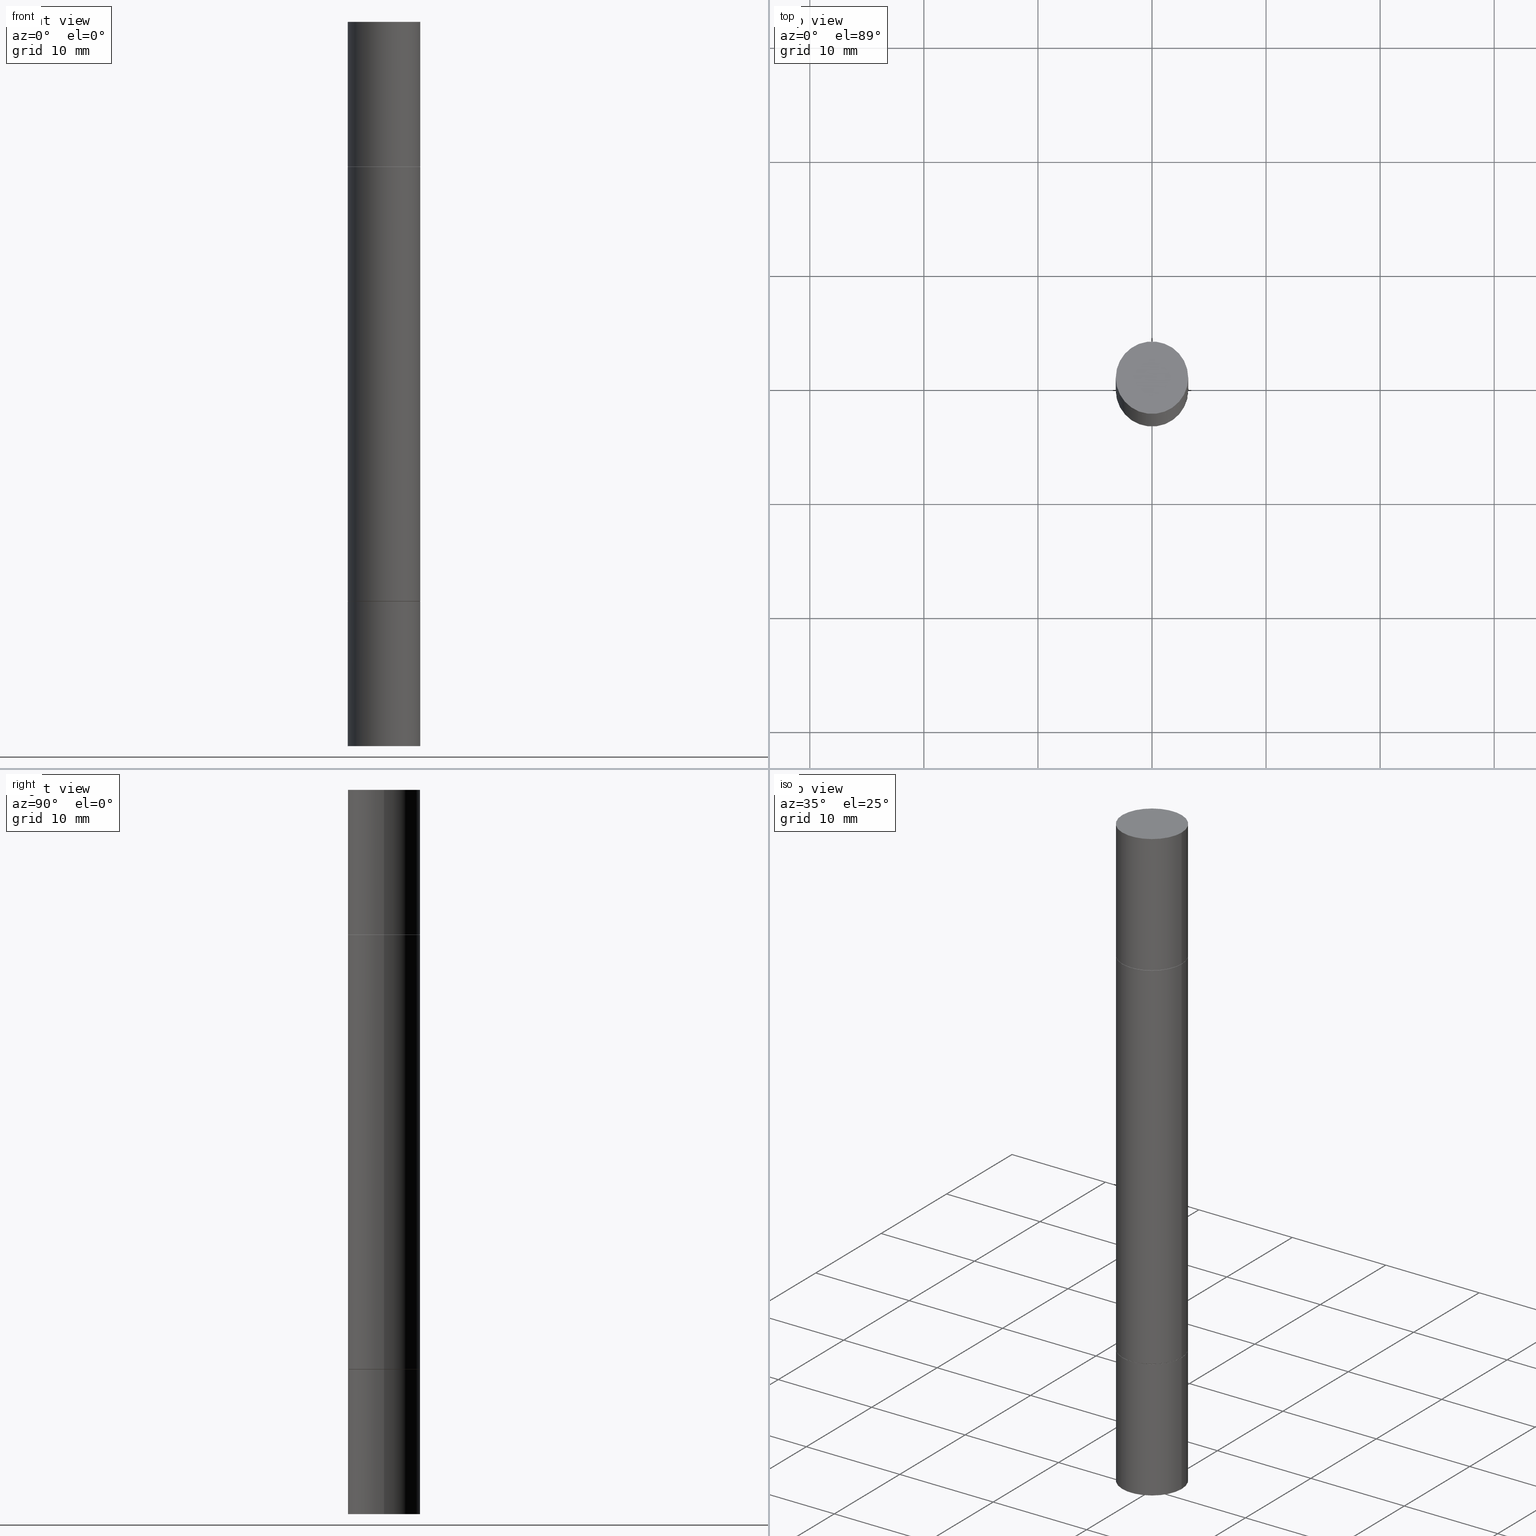
[diagram: canonical four-view strip — front | top / right | iso, engineering-drawing reading convention]
A machine part, canonical four-view strip (front | top / right | iso — engineering-drawing reading convention). The complete STEP part file that produces these views, byte-faithful:
ISO-10303-21;
HEADER;
FILE_DESCRIPTION (( 'STEP AP203' ),
    '1' );
FILE_NAME ('31529.STEP',
    '2024-03-04T15:42:30',
    ( '' ),
    ( '' ),
    'SwSTEP 2.0',
    'SolidWorks 2023',
    '' );
FILE_SCHEMA (( 'CONFIG_CONTROL_DESIGN' ));
ENDSEC;

DATA;
#1 = CALENDAR_DATE ( 2024, 4, 3 ) ;
#2 = CARTESIAN_POINT ( 'NONE',  ( 4.890937612370272633E-29, -6.982962677686290376E-15, -1.999999999999999778 ) ) ;
#3 = AXIS2_PLACEMENT_3D ( 'NONE', #149, #613, #347 ) ;
#4 = AXIS2_PLACEMENT_3D ( 'NONE', #616, #549, #446 ) ;
#5 = DIRECTION ( 'NONE',  ( 1.000000000000000000, -6.982962677686266711E-15, 0.000000000000000000 ) ) ;
#6 = ADVANCED_FACE ( 'NONE', ( #488 ), #642, .T. ) ;
#7 = LINE ( 'NONE', #589, #21 ) ;
#8 = DIRECTION ( 'NONE',  ( 0.000000000000000000, 1.000000000000000000, -3.492185875197449524E-15 ) ) ;
#9 = CARTESIAN_POINT ( 'NONE',  ( -0.1239999999999999991, -6.096591230995543750E-15, -1.999999999999999778 ) ) ;
#10 = CIRCLE ( 'NONE', #606, 0.1249999999999999861 ) ;
#11 = AXIS2_PLACEMENT_3D ( 'NONE', #272, #491, #487 ) ;
#12 = CARTESIAN_POINT ( 'NONE',  ( 0.1239999999999999991, -2.610571236923213217E-15, -0.4999999999999998335 ) ) ;
#13 = PRODUCT_DEFINITION ( 'UNKNOWN', '', #178, #117 ) ;
#14 = CARTESIAN_POINT ( 'NONE',  ( 4.888492143564087591E-29, -1.748176755301667838E-15, -0.5009999999999996678 ) ) ;
#15 = DIRECTION ( 'NONE',  ( 0.7071067811866138531, -7.407546758114477315E-15, -0.7071067811864811814 ) ) ;
#16 = CARTESIAN_POINT ( 'NONE',  ( 3.056836007731420185E-29, -4.364351673553931682E-15, -1.249999999999999778 ) ) ;
#17 = DIRECTION ( 'NONE',  ( 1.000000000000000000, -6.982962677686266711E-15, 0.000000000000000000 ) ) ;
#18 = ADVANCED_FACE ( 'NONE', ( #436 ), #47, .T. ) ;
#19 = CARTESIAN_POINT ( 'NONE',  ( -0.1239999999999999991, -8.939821131664464541E-16, -0.4999999999999998335 ) ) ;
#20 = ORIENTED_EDGE ( 'NONE', *, *, #284, .F. ) ;
#21 = VECTOR ( 'NONE', #15, 39.37007874015748143 ) ;
#22 =( LENGTH_UNIT ( ) NAMED_UNIT ( * ) SI_UNIT ( $, .METRE. ) );
#23 = VECTOR ( 'NONE', #576, 39.37007874015748143 ) ;
#24 = EDGE_LOOP ( 'NONE', ( #676, #270, #159, #377 ) ) ;
#25 = CC_DESIGN_DATE_AND_TIME_ASSIGNMENT ( #214, #151, ( #468 ) ) ;
#26 = EDGE_LOOP ( 'NONE', ( #312, #246 ) ) ;
#27 = CYLINDRICAL_SURFACE ( 'NONE', #621, 0.1249999999999998612 ) ;
#28 = CARTESIAN_POINT ( 'NONE',  ( 0.1250000000000000000, -8.711089938250227947E-16, 5.463695987328526437E-16 ) ) ;
#29 = CARTESIAN_POINT ( 'NONE',  ( 0.1250000000000000000, -2.617554199600898443E-15, -0.4999999999999996114 ) ) ;
#30 = LINE ( 'NONE', #291, #480 ) ;
#31 = DIRECTION ( 'NONE',  ( 1.000000000000000000, -6.982962677686270655E-15, 0.000000000000000000 ) ) ;
#32 = ORIENTED_EDGE ( 'NONE', *, *, #367, .T. ) ;
#33 = DIRECTION ( 'NONE',  ( -2.445468806185136597E-29, 3.491481338843145583E-15, 1.000000000000000000 ) ) ;
#34 = AXIS2_PLACEMENT_3D ( 'NONE', #79, #660, #137 ) ;
#35 = EDGE_CURVE ( 'NONE', #630, #415, #484, .T. ) ;
#36 = VERTEX_POINT ( 'NONE', #51 ) ;
#37 = PERSON_AND_ORGANIZATION ( #72, #644 ) ;
#38 = ORIENTED_EDGE ( 'NONE', *, *, #594, .T. ) ;
#39 = CARTESIAN_POINT ( 'NONE',  ( 3.056836007731420185E-29, -4.364351673553931682E-15, -1.249999999999999778 ) ) ;
#40 = CALENDAR_DATE ( 2024, 4, 3 ) ;
#41 = ORIENTED_EDGE ( 'NONE', *, *, #450, .T. ) ;
#42 = DIRECTION ( 'NONE',  ( -2.445468806185136877E-29, 3.491481338843145188E-15, 1.000000000000000000 ) ) ;
#43 = EDGE_CURVE ( 'NONE', #546, #142, #10, .T. ) ;
#44 = APPROVAL_STATUS ( 'not_yet_approved' ) ;
#45 = AXIS2_PLACEMENT_3D ( 'NONE', #399, #57, #559 ) ;
#46 = AXIS2_PLACEMENT_3D ( 'NONE', #379, #277, #8 ) ;
#47 = CONICAL_SURFACE ( 'NONE', #435, 0.1239999999999999991, 0.7853981633975420928 ) ;
#48 = APPROVAL ( #209, 'UNSPECIFIED' ) ;
#49 = EDGE_LOOP ( 'NONE', ( #263, #626, #100, #184 ) ) ;
#50 = ORIENTED_EDGE ( 'NONE', *, *, #358, .T. ) ;
#51 = CARTESIAN_POINT ( 'NONE',  ( -0.1249999999999999861, -8.906145055802259979E-16, -0.5009999999999996678 ) ) ;
#52 = ADVANCED_FACE ( 'NONE', ( #477 ), #617, .T. ) ;
#53 = COORDINATED_UNIVERSAL_TIME_OFFSET ( 5, 0, .BEHIND. ) ;
#54 = PLANE ( 'NONE',  #391 ) ;
#55 = PRODUCT ( '31529', '31529', '', ( #241 ) ) ;
#56 = PERSON_AND_ORGANIZATION ( #72, #644 ) ;
#57 = DIRECTION ( 'NONE',  ( -2.445468806185136597E-29, 3.491481338843145583E-15, 1.000000000000000000 ) ) ;
#58 = VERTEX_POINT ( 'NONE', #105 ) ;
#59 = EDGE_CURVE ( 'NONE', #156, #207, #382, .T. ) ;
#60 = CIRCLE ( 'NONE', #431, 0.1250000000000000000 ) ;
#61 = DIRECTION ( 'NONE',  ( 2.445468806185136597E-29, 3.492890411551752677E-15, 1.000000000000000000 ) ) ;
#62 = DIRECTION ( 'NONE',  ( 1.000000000000000000, -6.982962677686266711E-15, 0.000000000000000000 ) ) ;
#63 = ADVANCED_FACE ( 'NONE', ( #456 ), #610, .F. ) ;
#64 = ADVANCED_FACE ( 'NONE', ( #144 ), #139, .T. ) ;
#65 = DIRECTION ( 'NONE',  ( 0.7071067811866138531, -7.407546758114477315E-15, -0.7071067811864811814 ) ) ;
#66 = CONICAL_SURFACE ( 'NONE', #177, 0.1239999999999999991, 0.7853981633975420928 ) ;
#67 = CC_DESIGN_APPROVAL ( #387, ( #178 ) ) ;
#68 = EDGE_LOOP ( 'NONE', ( #220, #460, #192, #331 ) ) ;
#69 = CARTESIAN_POINT ( 'NONE',  ( 0.1250000000000000000, -2.617554199600898443E-15, -0.4999999999999996114 ) ) ;
#70 = DIRECTION ( 'NONE',  ( 1.000000000000000000, -6.982962677686267499E-15, 0.000000000000000000 ) ) ;
#71 = CARTESIAN_POINT ( 'NONE',  ( 4.890937612370272633E-29, -1.744683864890116287E-15, -0.4999999999999998335 ) ) ;
#72 = PERSON ( 'UNSPECIFIED', 'UNSPECIFIED', 'UNSPECIFIED', ('UNSPECIFIED'), ('UNSPECIFIED'), ('UNSPECIFIED') ) ;
#73 = ORIENTED_EDGE ( 'NONE', *, *, #239, .F. ) ;
#74 = DIRECTION ( 'NONE',  ( 1.000000000000000000, -6.982962677686270655E-15, 0.000000000000000000 ) ) ;
#75 = EDGE_CURVE ( 'NONE', #667, #536, #345, .T. ) ;
#76 = AXIS2_PLACEMENT_3D ( 'NONE', #281, #295, #454 ) ;
#77 = CIRCLE ( 'NONE', #168, 0.1250000000000000000 ) ;
#78 = CC_DESIGN_APPROVAL ( #48, ( #13 ) ) ;
#79 = CARTESIAN_POINT ( 'NONE',  ( 0.000000000000000000, -8.730464687993621641E-15, -2.499999999999999556 ) ) ;
#80 = ORIENTED_EDGE ( 'NONE', *, *, #594, .F. ) ;
#81 = DIRECTION ( 'NONE',  ( -1.000000000000000000, 6.982962677686265922E-15, -9.839502134516470631E-33 ) ) ;
#82 = CARTESIAN_POINT ( 'NONE',  ( 8.728703347108321496E-16, 0.1249999999999982514, -0.4999999999999998335 ) ) ;
#83 = DIRECTION ( 'NONE',  ( 0.000000000000000000, 1.000000000000000000, -4.370956789862825883E-15 ) ) ;
#84 = EDGE_CURVE ( 'NONE', #667, #630, #60, .T. ) ;
#85 =( CONVERSION_BASED_UNIT ( 'INCH', #183 ) LENGTH_UNIT ( ) NAMED_UNIT ( #237 ) );
#86 = ORIENTED_EDGE ( 'NONE', *, *, #640, .F. ) ;
#87 = DIRECTION ( 'NONE',  ( -2.445468806185136877E-29, -3.492890411551753071E-15, -1.000000000000000000 ) ) ;
#88 = PERSON_AND_ORGANIZATION_ROLE ( 'design_owner' ) ;
#89 = ORIENTED_EDGE ( 'NONE', *, *, #640, .T. ) ;
#90 = CLOSED_SHELL ( 'NONE', ( #428, #250, #603, #322 ) ) ;
#91 = CARTESIAN_POINT ( 'NONE',  ( 0.1250000000000000000, -7.855833012397075293E-15, -2.000000000000000000 ) ) ;
#92 = ORIENTED_EDGE ( 'NONE', *, *, #450, .F. ) ;
#93 = COORDINATED_UNIVERSAL_TIME_OFFSET ( 5, 0, .BEHIND. ) ;
#94 = EDGE_CURVE ( 'NONE', #547, #365, #472, .T. ) ;
#95 = FACE_OUTER_BOUND ( 'NONE', #489, .T. ) ;
#96 = ORIENTED_EDGE ( 'NONE', *, *, #94, .F. ) ;
#97 = VERTEX_POINT ( 'NONE', #419 ) ;
#98 = EDGE_LOOP ( 'NONE', ( #510, #620 ) ) ;
#99 = AXIS2_PLACEMENT_3D ( 'NONE', #14, #593, #70 ) ;
#100 = ORIENTED_EDGE ( 'NONE', *, *, #526, .T. ) ;
#101 = AXIS2_PLACEMENT_3D ( 'NONE', #485, #231, #116 ) ;
#102 = AXIS2_PLACEMENT_3D ( 'NONE', #282, #33, #389 ) ;
#103 = DIRECTION ( 'NONE',  ( 2.445468806185136597E-29, 3.492890411551752677E-15, 1.000000000000000000 ) ) ;
#104 = APPROVAL_ROLE ( '' ) ;
#105 = CARTESIAN_POINT ( 'NONE',  ( -0.1249999999999998612, -2.198701964706358019E-15, -1.249999999999999778 ) ) ;
#106 = EDGE_CURVE ( 'NONE', #413, #547, #320, .T. ) ;
#107 = DIRECTION ( 'NONE',  ( -1.000000000000000000, 6.982962677686265922E-15, -9.839502134516470631E-33 ) ) ;
#108 = CARTESIAN_POINT ( 'NONE',  ( -0.1249999999999998612, -7.872902438272180196E-15, -2.499999999999999556 ) ) ;
#109 = DIRECTION ( 'NONE',  ( 2.445468806185136597E-29, 3.492890411551752677E-15, 1.000000000000000000 ) ) ;
#110 = AXIS2_PLACEMENT_3D ( 'NONE', #401, #158, #622 ) ;
#111 = AXIS2_PLACEMENT_3D ( 'NONE', #247, #236, #74 ) ;
#112 = AXIS2_PLACEMENT_3D ( 'NONE', #614, #252, #409 ) ;
#113 = FACE_OUTER_BOUND ( 'NONE', #464, .T. ) ;
#114 = DIRECTION ( 'NONE',  ( 1.000000000000000000, -6.982962677686266711E-15, 4.876176775795935793E-29 ) ) ;
#115 = ADVANCED_FACE ( 'NONE', ( #304 ), #54, .T. ) ;
#116 = DIRECTION ( 'NONE',  ( 1.000000000000000000, -6.982962677686266711E-15, 0.000000000000000000 ) ) ;
#117 = DESIGN_CONTEXT ( 'detailed design', #171, 'design' ) ;
#118 = DIRECTION ( 'NONE',  ( 2.438088387897959769E-29, 3.492890411551753071E-15, 1.000000000000000000 ) ) ;
#119 = CARTESIAN_POINT ( 'NONE',  ( 0.1249999999999999861, -7.852341531058230708E-15, -1.998999999999999888 ) ) ;
#120 = PLANE ( 'NONE',  #76 ) ;
#121 = AXIS2_PLACEMENT_3D ( 'NONE', #651, #273, #585 ) ;
#122 = ORIENTED_EDGE ( 'NONE', *, *, #445, .F. ) ;
#123 =( GEOMETRIC_REPRESENTATION_CONTEXT ( 3 ) GLOBAL_UNCERTAINTY_ASSIGNED_CONTEXT ( ( #325 ) ) GLOBAL_UNIT_ASSIGNED_CONTEXT ( ( #85, #609, #611 ) ) REPRESENTATION_CONTEXT ( 'NONE', 'WORKASPACE' ) );
#124 = DIRECTION ( 'NONE',  ( 1.000000000000000000, -6.982962677686270655E-15, 0.000000000000000000 ) ) ;
#125 = DIRECTION ( 'NONE',  ( -2.445468806185136597E-29, -3.492890411551752677E-15, -1.000000000000000000 ) ) ;
#126 = ORIENTED_EDGE ( 'NONE', *, *, #424, .T. ) ;
#127 = FACE_OUTER_BOUND ( 'NONE', #505, .T. ) ;
#128 = ADVANCED_FACE ( 'NONE', ( #354 ), #568, .T. ) ;
#129 = ORIENTED_EDGE ( 'NONE', *, *, #166, .T. ) ;
#130 = ORIENTED_EDGE ( 'NONE', *, *, #35, .T. ) ;
#131 = ORIENTED_EDGE ( 'NONE', *, *, #278, .T. ) ;
#132 = DIRECTION ( 'NONE',  ( -2.445468806185136877E-29, -3.492890411551753071E-15, -1.000000000000000000 ) ) ;
#133 = ORIENTED_EDGE ( 'NONE', *, *, #264, .F. ) ;
#134 = VECTOR ( 'NONE', #65, 39.37007874015748143 ) ;
#135 = CIRCLE ( 'NONE', #286, 0.1250000000000000000 ) ;
#136 = CC_DESIGN_PERSON_AND_ORGANIZATION_ASSIGNMENT ( #190, #88, ( #55 ) ) ;
#137 = DIRECTION ( 'NONE',  ( 1.000000000000000000, -6.982962677686262766E-15, 0.000000000000000000 ) ) ;
#138 = DIRECTION ( 'NONE',  ( -2.445468806185136597E-29, -3.492890411551752677E-15, -1.000000000000000000 ) ) ;
#139 = PLANE ( 'NONE',  #352 ) ;
#140 = DIRECTION ( 'NONE',  ( -2.445468806185136877E-29, -3.492890411551753071E-15, -1.000000000000000000 ) ) ;
#141 = CARTESIAN_POINT ( 'NONE',  ( 0.000000000000000000, 0.000000000000000000, 0.000000000000000000 ) ) ;
#142 = VERTEX_POINT ( 'NONE', #373 ) ;
#143 = CIRCLE ( 'NONE', #101, 0.1250000000000000000 ) ;
#144 = FACE_OUTER_BOUND ( 'NONE', #98, .T. ) ;
#145 = ORIENTED_EDGE ( 'NONE', *, *, #519, .T. ) ;
#146 = AXIS2_PLACEMENT_3D ( 'NONE', #518, #221, #531 ) ;
#147 = CC_DESIGN_PERSON_AND_ORGANIZATION_ASSIGNMENT ( #259, #629, ( #13 ) ) ;
#148 = ORIENTED_EDGE ( 'NONE', *, *, #300, .T. ) ;
#149 = CARTESIAN_POINT ( 'NONE',  ( 0.000000000000000000, -8.730464687993621641E-15, -2.499999999999999556 ) ) ;
#150 = DIRECTION ( 'NONE',  ( 1.000000000000000000, -6.982962677686270655E-15, 0.000000000000000000 ) ) ;
#151 = DATE_TIME_ROLE ( 'classification_date' ) ;
#152 = ORIENTED_EDGE ( 'NONE', *, *, #503, .F. ) ;
#153 = ORIENTED_EDGE ( 'NONE', *, *, #179, .T. ) ;
#154 = CALENDAR_DATE ( 2024, 4, 3 ) ;
#155 = AXIS2_PLACEMENT_3D ( 'NONE', #388, #554, #81 ) ;
#156 = VERTEX_POINT ( 'NONE', #172 ) ;
#157 = LOCAL_TIME ( 10, 42, 30.00000000000000000, #53 ) ;
#158 = DIRECTION ( 'NONE',  ( -2.445468806185136597E-29, 3.491481338843145583E-15, 1.000000000000000000 ) ) ;
#159 = ORIENTED_EDGE ( 'NONE', *, *, #264, .T. ) ;
#160 = CARTESIAN_POINT ( 'NONE',  ( 4.890937612370273194E-29, -1.744683864890115301E-15, -0.4999999999999996114 ) ) ;
#161 = ADVANCED_FACE ( 'NONE', ( #230 ), #120, .F. ) ;
#162 = EDGE_CURVE ( 'NONE', #238, #36, #188, .T. ) ;
#163 = DIRECTION ( 'NONE',  ( 1.000000000000000000, -6.982962677686266711E-15, 0.000000000000000000 ) ) ;
#164 = DIRECTION ( 'NONE',  ( 1.000000000000000000, -6.982962677686267499E-15, 0.000000000000000000 ) ) ;
#165 = CARTESIAN_POINT ( 'NONE',  ( 6.113672015462842613E-29, 1.761340885760521790E-18, 5.463695987328526437E-16 ) ) ;
#166 = EDGE_CURVE ( 'NONE', #383, #156, #600, .T. ) ;
#167 = VECTOR ( 'NONE', #181, 39.37007874015748143 ) ;
#168 = AXIS2_PLACEMENT_3D ( 'NONE', #233, #374, #17 ) ;
#169 = AXIS2_PLACEMENT_3D ( 'NONE', #82, #245, #455 ) ;
#170 = CARTESIAN_POINT ( 'NONE',  ( -0.1249999999999999861, -8.906145055802259979E-16, -0.5009999999999996678 ) ) ;
#171 = APPLICATION_CONTEXT ( 'configuration controlled 3d designs of mechanical parts and assemblies' ) ;
#172 = CARTESIAN_POINT ( 'NONE',  ( -0.1250000000000000000, -6.967654592696952427E-15, -2.000000000000000000 ) ) ;
#173 = DIRECTION ( 'NONE',  ( 1.000000000000000000, -6.982962677686266711E-15, 0.000000000000000000 ) ) ;
#174 = ORIENTED_EDGE ( 'NONE', *, *, #186, .F. ) ;
#175 = DIRECTION ( 'NONE',  ( 0.000000000000000000, 1.000000000000000000, -4.370956789862825883E-15 ) ) ;
#176 = DIRECTION ( 'NONE',  ( 1.000000000000000000, -6.982962677686266711E-15, 0.000000000000000000 ) ) ;
#177 = AXIS2_PLACEMENT_3D ( 'NONE', #590, #138, #469 ) ;
#178 = PRODUCT_DEFINITION_FORMATION_WITH_SPECIFIED_SOURCE ( 'ANY', '', #55, .NOT_KNOWN. ) ;
#179 = EDGE_CURVE ( 'NONE', #244, #313, #474, .T. ) ;
#180 = PLANE ( 'NONE',  #528 ) ;
#181 = DIRECTION ( 'NONE',  ( -0.7071067811866138531, 2.381258160591953236E-15, -0.7071067811864811814 ) ) ;
#182 = LINE ( 'NONE', #601, #523 ) ;
#183 = LENGTH_MEASURE_WITH_UNIT ( LENGTH_MEASURE( 0.02539999999999999897 ), #22 );
#184 = ORIENTED_EDGE ( 'NONE', *, *, #675, .F. ) ;
#185 = DIRECTION ( 'NONE',  ( -0.000000000000000000, -3.492185875197449130E-15, -1.000000000000000000 ) ) ;
#186 = EDGE_CURVE ( 'NONE', #448, #356, #522, .T. ) ;
#187 = DIRECTION ( 'NONE',  ( 2.445468806185136597E-29, 3.492890411551752677E-15, 1.000000000000000000 ) ) ;
#188 = LINE ( 'NONE', #19, #167 ) ;
#189 = AXIS2_PLACEMENT_3D ( 'NONE', #329, #440, #539 ) ;
#190 = PERSON_AND_ORGANIZATION ( #72, #644 ) ;
#191 = FACE_OUTER_BOUND ( 'NONE', #395, .T. ) ;
#192 = ORIENTED_EDGE ( 'NONE', *, *, #336, .T. ) ;
#193 = CARTESIAN_POINT ( 'NONE',  ( 0.1249999999999998612, -3.929134549138581225E-15, -1.249999999999999778 ) ) ;
#194 = ORIENTED_EDGE ( 'NONE', *, *, #615, .F. ) ;
#195 = DIRECTION ( 'NONE',  ( -2.445468806185136597E-29, 3.491481338843145583E-15, 1.000000000000000000 ) ) ;
#196 = DIRECTION ( 'NONE',  ( 2.445468806185136597E-29, 3.492890411551752677E-15, 1.000000000000000000 ) ) ;
#197 = EDGE_LOOP ( 'NONE', ( #152, #153, #301, #299 ) ) ;
#198 = ADVANCED_FACE ( 'NONE', ( #208 ), #574, .F. ) ;
#199 = AXIS2_PLACEMENT_3D ( 'NONE', #380, #384, #173 ) ;
#200 = CIRCLE ( 'NONE', #4, 0.1239999999999999991 ) ;
#201 = EDGE_LOOP ( 'NONE', ( #357, #131, #521, #508 ) ) ;
#202 = ORIENTED_EDGE ( 'NONE', *, *, #424, .F. ) ;
#203 = CARTESIAN_POINT ( 'NONE',  ( -0.1250000000000000000, -1.389901228073636467E-17, -0.4999999999999996114 ) ) ;
#204 = SHAPE_DEFINITION_REPRESENTATION ( #334, #569 ) ;
#205 = ORIENTED_EDGE ( 'NONE', *, *, #519, .F. ) ;
#206 = EDGE_LOOP ( 'NONE', ( #572, #465, #562, #41 ) ) ;
#207 = VERTEX_POINT ( 'NONE', #91 ) ;
#208 = FACE_OUTER_BOUND ( 'NONE', #476, .T. ) ;
#209 = APPROVAL_STATUS ( 'not_yet_approved' ) ;
#210 = ORIENTED_EDGE ( 'NONE', *, *, #213, .F. ) ;
#211 = EDGE_LOOP ( 'NONE', ( #337, #457, #591, #249 ) ) ;
#212 = DIRECTION ( 'NONE',  ( 0.7071067811866138531, -2.468850131082952047E-15, 0.7071067811864811814 ) ) ;
#213 = EDGE_CURVE ( 'NONE', #356, #546, #534, .T. ) ;
#214 = DATE_AND_TIME ( #1, #578 ) ;
#215 = CIRCLE ( 'NONE', #11, 0.1250000000000000000 ) ;
#216 = DIRECTION ( 'NONE',  ( -2.445468806185136597E-29, 3.491481338843145583E-15, 1.000000000000000000 ) ) ;
#217 = CIRCLE ( 'NONE', #662, 0.1249999999999999861 ) ;
#218 = CARTESIAN_POINT ( 'NONE',  ( 8.728703347108443769E-16, 0.1250000000000000278, 0.000000000000000000 ) ) ;
#219 = EDGE_CURVE ( 'NONE', #238, #493, #226, .T. ) ;
#220 = ORIENTED_EDGE ( 'NONE', *, *, #179, .F. ) ;
#221 = DIRECTION ( 'NONE',  ( -2.445468806185136597E-29, -3.492890411551752677E-15, -1.000000000000000000 ) ) ;
#222 = CARTESIAN_POINT ( 'NONE',  ( 4.888492143564087591E-29, -1.748176755301667838E-15, -0.5009999999999996678 ) ) ;
#223 = ADVANCED_FACE ( 'NONE', ( #655 ), #321, .T. ) ;
#224 = DIRECTION ( 'NONE',  ( -2.438088387897959769E-29, -3.492890411551753071E-15, -1.000000000000000000 ) ) ;
#225 = CARTESIAN_POINT ( 'NONE',  ( 4.890937612370273194E-29, -1.744683864890115301E-15, -0.4999999999999996114 ) ) ;
#226 = CIRCLE ( 'NONE', #529, 0.1239999999999999991 ) ;
#227 = AXIS2_PLACEMENT_3D ( 'NONE', #225, #224, #494 ) ;
#228 = DIRECTION ( 'NONE',  ( 1.000000000000000000, -6.982962677686262766E-15, 0.000000000000000000 ) ) ;
#229 = CARTESIAN_POINT ( 'NONE',  ( 4.890937612370273194E-29, -1.744683864890115301E-15, -0.4999999999999996114 ) ) ;
#230 = FACE_OUTER_BOUND ( 'NONE', #303, .T. ) ;
#231 = DIRECTION ( 'NONE',  ( 2.445468806185136597E-29, 3.492890411551752677E-15, 1.000000000000000000 ) ) ;
#232 = ADVANCED_FACE ( 'NONE', ( #573 ), #467, .T. ) ;
#233 = CARTESIAN_POINT ( 'NONE',  ( 6.113672015462842613E-29, 1.761340885760521790E-18, 5.463695987328526437E-16 ) ) ;
#234 = CIRCLE ( 'NONE', #99, 0.1249999999999999861 ) ;
#235 = CLOSED_SHELL ( 'NONE', ( #223, #653, #18, #479, #309, #260, #232, #198 ) ) ;
#236 = DIRECTION ( 'NONE',  ( -2.445468806185136597E-29, 3.491481338843145583E-15, 1.000000000000000000 ) ) ;
#237 = DIMENSIONAL_EXPONENTS ( 1.000000000000000000, 0.000000000000000000, 0.000000000000000000, 0.000000000000000000, 0.000000000000000000, 0.000000000000000000, 0.000000000000000000 ) ;
#238 = VERTEX_POINT ( 'NONE', #561 ) ;
#239 = EDGE_CURVE ( 'NONE', #654, #207, #248, .T. ) ;
#240 = DIRECTION ( 'NONE',  ( -2.445468806185136597E-29, -3.492890411551752677E-15, -1.000000000000000000 ) ) ;
#241 = MECHANICAL_CONTEXT ( 'NONE', #311, 'mechanical' ) ;
#242 = PRODUCT_RELATED_PRODUCT_CATEGORY ( 'detail', '', ( #55 ) ) ;
#243 = ORIENTED_EDGE ( 'NONE', *, *, #106, .F. ) ;
#244 = VERTEX_POINT ( 'NONE', #302 ) ;
#245 = DIRECTION ( 'NONE',  ( 2.438088387897959769E-29, 3.492890411551753071E-15, 1.000000000000000000 ) ) ;
#246 = ORIENTED_EDGE ( 'NONE', *, *, #503, .T. ) ;
#247 = CARTESIAN_POINT ( 'NONE',  ( 4.890937612370272633E-29, -6.982962677686290376E-15, -1.999999999999999778 ) ) ;
#248 = LINE ( 'NONE', #400, #275 ) ;
#249 = ORIENTED_EDGE ( 'NONE', *, *, #526, .F. ) ;
#250 = ADVANCED_FACE ( 'NONE', ( #517 ), #659, .T. ) ;
#251 = DATE_AND_TIME ( #154, #372 ) ;
#252 = DIRECTION ( 'NONE',  ( 2.445468806185136597E-29, 3.492890411551752677E-15, 1.000000000000000000 ) ) ;
#253 = EDGE_LOOP ( 'NONE', ( #89, #148, #362, #96 ) ) ;
#254 = VECTOR ( 'NONE', #87, 39.37007874015748143 ) ;
#255 = DATE_AND_TIME ( #40, #342 ) ;
#256 = CIRCLE ( 'NONE', #341, 0.1250000000000000000 ) ;
#257 = APPROVAL_PERSON_ORGANIZATION ( #421, #586, #265 ) ;
#258 = VERTEX_POINT ( 'NONE', #504 ) ;
#259 = PERSON_AND_ORGANIZATION ( #72, #644 ) ;
#260 = ADVANCED_FACE ( 'NONE', ( #287 ), #27, .T. ) ;
#261 = COORDINATED_UNIVERSAL_TIME_OFFSET ( 5, 0, .BEHIND. ) ;
#262 = DIRECTION ( 'NONE',  ( 1.000000000000000000, -6.982962677686270655E-15, 0.000000000000000000 ) ) ;
#263 = ORIENTED_EDGE ( 'NONE', *, *, #631, .F. ) ;
#264 = EDGE_CURVE ( 'NONE', #142, #679, #182, .T. ) ;
#265 = APPROVAL_ROLE ( '' ) ;
#266 = CARTESIAN_POINT ( 'NONE',  ( 0.1250000000000000000, -9.603335022704404980E-15, -2.499999999999999556 ) ) ;
#267 = EDGE_LOOP ( 'NONE', ( #678, #130, #38, #353 ) ) ;
#268 = AXIS2_PLACEMENT_3D ( 'NONE', #2, #216, #638 ) ;
#269 = CLOSED_SHELL ( 'NONE', ( #128, #115, #496, #553 ) ) ;
#270 = ORIENTED_EDGE ( 'NONE', *, *, #668, .F. ) ;
#271 = FACE_OUTER_BOUND ( 'NONE', #206, .T. ) ;
#272 = CARTESIAN_POINT ( 'NONE',  ( 4.890937612370273194E-29, -1.744683864890115301E-15, -0.4999999999999996114 ) ) ;
#273 = DIRECTION ( 'NONE',  ( -2.445468806185136597E-29, -3.492890411551752677E-15, -1.000000000000000000 ) ) ;
#274 = DIRECTION ( 'NONE',  ( -2.445468806185136597E-29, 3.491481338843145583E-15, 1.000000000000000000 ) ) ;
#275 = VECTOR ( 'NONE', #619, 39.37007874015748143 ) ;
#276 = EDGE_LOOP ( 'NONE', ( #408, #145 ) ) ;
#277 = DIRECTION ( 'NONE',  ( 0.000000000000000000, 3.492185875197449524E-15, 1.000000000000000000 ) ) ;
#278 = EDGE_CURVE ( 'NONE', #383, #654, #563, .T. ) ;
#279 = DIRECTION ( 'NONE',  ( -2.445468806185136597E-29, 3.491481338843145583E-15, 1.000000000000000000 ) ) ;
#280 = CARTESIAN_POINT ( 'NONE',  ( 0.1239999999999999991, -7.848850049719387701E-15, -1.999999999999999778 ) ) ;
#281 = CARTESIAN_POINT ( 'NONE',  ( 8.728703347108321496E-16, 0.1249999999999930195, -2.000000000000000444 ) ) ;
#282 = CARTESIAN_POINT ( 'NONE',  ( 4.888492143564087591E-29, -6.979471196347447369E-15, -1.998999999999999888 ) ) ;
#283 = AXIS2_PLACEMENT_3D ( 'NONE', #545, #552, #31 ) ;
#284 = EDGE_CURVE ( 'NONE', #313, #308, #650, .T. ) ;
#285 = ORIENTED_EDGE ( 'NONE', *, *, #668, .T. ) ;
#286 = AXIS2_PLACEMENT_3D ( 'NONE', #229, #438, #289 ) ;
#287 = FACE_OUTER_BOUND ( 'NONE', #471, .T. ) ;
#288 = FACE_OUTER_BOUND ( 'NONE', #49, .T. ) ;
#289 = DIRECTION ( 'NONE',  ( 1.000000000000000000, -6.982962677686266711E-15, 0.000000000000000000 ) ) ;
#290 = DIRECTION ( 'NONE',  ( -0.7071067811866138531, 7.493145998870593974E-15, 0.7071067811864811814 ) ) ;
#291 = CARTESIAN_POINT ( 'NONE',  ( 0.1250000000000000000, -9.603335022704404980E-15, -2.499999999999999556 ) ) ;
#292 = DIRECTION ( 'NONE',  ( 1.000000000000000000, 0.000000000000000000, 0.000000000000000000 ) ) ;
#293 = ORIENTED_EDGE ( 'NONE', *, *, #84, .T. ) ;
#294 = ORIENTED_EDGE ( 'NONE', *, *, #43, .T. ) ;
#295 = DIRECTION ( 'NONE',  ( 2.438088387897960049E-29, -3.491481338843145188E-15, -1.000000000000000000 ) ) ;
#296 = AXIS2_PLACEMENT_3D ( 'NONE', #323, #533, #62 ) ;
#297 = AXIS2_PLACEMENT_3D ( 'NONE', #141, #343, #292 ) ;
#298 = FACE_OUTER_BOUND ( 'NONE', #418, .T. ) ;
#299 = ORIENTED_EDGE ( 'NONE', *, *, #336, .F. ) ;
#300 = EDGE_CURVE ( 'NONE', #413, #97, #608, .T. ) ;
#301 = ORIENTED_EDGE ( 'NONE', *, *, #284, .T. ) ;
#302 = CARTESIAN_POINT ( 'NONE',  ( -0.1250000000000000000, -1.389901228073636467E-17, 5.463695987328557991E-16 ) ) ;
#303 = EDGE_LOOP ( 'NONE', ( #126, #580 ) ) ;
#304 = FACE_OUTER_BOUND ( 'NONE', #441, .T. ) ;
#305 = EDGE_LOOP ( 'NONE', ( #570, #338, #307, #671 ) ) ;
#306 = CYLINDRICAL_SURFACE ( 'NONE', #499, 0.1250000000000000000 ) ;
#307 = ORIENTED_EDGE ( 'NONE', *, *, #631, .T. ) ;
#308 = VERTEX_POINT ( 'NONE', #29 ) ;
#309 = ADVANCED_FACE ( 'NONE', ( #191 ), #66, .T. ) ;
#310 = PERSON_AND_ORGANIZATION ( #72, #644 ) ;
#311 = APPLICATION_CONTEXT ( 'configuration controlled 3d designs of mechanical parts and assemblies' ) ;
#312 = ORIENTED_EDGE ( 'NONE', *, *, #462, .T. ) ;
#313 = VERTEX_POINT ( 'NONE', #203 ) ;
#314 = LINE ( 'NONE', #108, #392 ) ;
#315 = CC_DESIGN_PERSON_AND_ORGANIZATION_ASSIGNMENT ( #470, #632, ( #468 ) ) ;
#316 = APPROVAL_DATE_TIME ( #406, #387 ) ;
#317 = CARTESIAN_POINT ( 'NONE',  ( 6.113672015462842613E-29, 1.761340885760521790E-18, 5.463695987328526437E-16 ) ) ;
#318 = ORIENTED_EDGE ( 'NONE', *, *, #358, .F. ) ;
#319 = APPROVAL_ROLE ( '' ) ;
#320 = CIRCLE ( 'NONE', #110, 0.1239999999999999991 ) ;
#321 = CONICAL_SURFACE ( 'NONE', #370, 0.1239999999999999991, 0.7853981633975420928 ) ;
#322 = ADVANCED_FACE ( 'NONE', ( #674 ), #412, .T. ) ;
#323 = CARTESIAN_POINT ( 'NONE',  ( 4.890937612370272633E-29, -1.744683864890116287E-15, -0.4999999999999998335 ) ) ;
#324 = CARTESIAN_POINT ( 'NONE',  ( -0.1250000000000000000, -1.389901228073636467E-17, -0.4999999999999996114 ) ) ;
#325 = UNCERTAINTY_MEASURE_WITH_UNIT (LENGTH_MEASURE( 1.000000000000000082E-05 ), #85, 'distance_accuracy_value', 'NONE');
#326 = DIRECTION ( 'NONE',  ( -2.445468806185136877E-29, -3.492890411551753071E-15, -1.000000000000000000 ) ) ;
#327 = ORIENTED_EDGE ( 'NONE', *, *, #328, .F. ) ;
#328 = EDGE_CURVE ( 'NONE', #679, #58, #349, .T. ) ;
#329 = CARTESIAN_POINT ( 'NONE',  ( 4.888492143564087591E-29, -6.979471196347447369E-15, -1.998999999999999888 ) ) ;
#330 = VECTOR ( 'NONE', #410, 39.37007874015748143 ) ;
#331 = ORIENTED_EDGE ( 'NONE', *, *, #582, .T. ) ;
#332 = DIRECTION ( 'NONE',  ( -0.000000000000000000, -3.492185875197449130E-15, -1.000000000000000000 ) ) ;
#333 = FACE_OUTER_BOUND ( 'NONE', #24, .T. ) ;
#334 = PRODUCT_DEFINITION_SHAPE ( 'NONE', 'NONE',  #13 ) ;
#335 = LINE ( 'NONE', #497, #404 ) ;
#336 = EDGE_CURVE ( 'NONE', #258, #308, #30, .T. ) ;
#337 = ORIENTED_EDGE ( 'NONE', *, *, #300, .F. ) ;
#338 = ORIENTED_EDGE ( 'NONE', *, *, #162, .T. ) ;
#339 = DIRECTION ( 'NONE',  ( 1.000000000000000000, -6.982962677686266711E-15, 0.000000000000000000 ) ) ;
#340 = VECTOR ( 'NONE', #427, 39.37007874015748143 ) ;
#341 = AXIS2_PLACEMENT_3D ( 'NONE', #535, #195, #351 ) ;
#342 = LOCAL_TIME ( 10, 42, 30.00000000000000000, #481 ) ;
#343 = DIRECTION ( 'NONE',  ( 0.000000000000000000, 0.000000000000000000, 1.000000000000000000 ) ) ;
#344 = CARTESIAN_POINT ( 'NONE',  ( 4.888492143564087591E-29, -1.748176755301667838E-15, -0.5009999999999996678 ) ) ;
#345 = LINE ( 'NONE', #266, #254 ) ;
#346 = ADVANCED_FACE ( 'NONE', ( #453 ), #560, .T. ) ;
#347 = DIRECTION ( 'NONE',  ( 1.000000000000000000, -6.982962677686270655E-15, 0.000000000000000000 ) ) ;
#348 = DIRECTION ( 'NONE',  ( -2.438088387897960049E-29, 3.491481338843145188E-15, 1.000000000000000000 ) ) ;
#349 = CIRCLE ( 'NONE', #672, 0.1249999999999998612 ) ;
#350 = CIRCLE ( 'NONE', #102, 0.1249999999999999861 ) ;
#351 = DIRECTION ( 'NONE',  ( 1.000000000000000000, -6.982962677686270655E-15, 0.000000000000000000 ) ) ;
#352 = AXIS2_PLACEMENT_3D ( 'NONE', #361, #425, #366 ) ;
#353 = ORIENTED_EDGE ( 'NONE', *, *, #75, .F. ) ;
#354 = FACE_OUTER_BOUND ( 'NONE', #267, .T. ) ;
#355 = CARTESIAN_POINT ( 'NONE',  ( -0.1249999999999998612, -7.872902438272180196E-15, -2.499999999999999556 ) ) ;
#356 = VERTEX_POINT ( 'NONE', #540 ) ;
#357 = ORIENTED_EDGE ( 'NONE', *, *, #166, .F. ) ;
#358 = EDGE_CURVE ( 'NONE', #385, #36, #234, .T. ) ;
#359 = DIRECTION ( 'NONE',  ( -2.445468806185136597E-29, -3.492890411551752677E-15, -1.000000000000000000 ) ) ;
#360 = DATE_AND_TIME ( #416, #551 ) ;
#361 = CARTESIAN_POINT ( 'NONE',  ( 8.728703347108443769E-16, 0.1249999999999912709, -2.500000000000000444 ) ) ;
#362 = ORIENTED_EDGE ( 'NONE', *, *, #647, .F. ) ;
#363 = PERSON_AND_ORGANIZATION_ROLE ( 'design_supplier' ) ;
#364 = DIRECTION ( 'NONE',  ( 2.438088387897959769E-29, 3.492890411551753071E-15, 1.000000000000000000 ) ) ;
#365 = VERTEX_POINT ( 'NONE', #119 ) ;
#366 = DIRECTION ( 'NONE',  ( -1.000000000000000000, 6.982962677686265922E-15, -4.876176775795935793E-29 ) ) ;
#367 = EDGE_CURVE ( 'NONE', #58, #679, #403, .T. ) ;
#368 = CARTESIAN_POINT ( 'NONE',  ( 4.890937612370272633E-29, -1.744683864890116287E-15, -0.4999999999999998335 ) ) ;
#369 = CLOSED_SHELL ( 'NONE', ( #6, #52, #486, #63, #577, #566 ) ) ;
#370 = AXIS2_PLACEMENT_3D ( 'NONE', #666, #451, #262 ) ;
#371 = CYLINDRICAL_SURFACE ( 'NONE', #121, 0.1249999999999998612 ) ;
#372 = LOCAL_TIME ( 10, 42, 30.00000000000000000, #261 ) ;
#373 = CARTESIAN_POINT ( 'NONE',  ( 0.1249999999999999861, -2.621047090012450585E-15, -0.5009999999999996678 ) ) ;
#374 = DIRECTION ( 'NONE',  ( 2.445468806185136597E-29, 3.492890411551752677E-15, 1.000000000000000000 ) ) ;
#375 = EDGE_CURVE ( 'NONE', #654, #383, #575, .T. ) ;
#376 = CARTESIAN_POINT ( 'NONE',  ( 0.000000000000000000, -8.730464687993621641E-15, -2.499999999999999556 ) ) ;
#377 = ORIENTED_EDGE ( 'NONE', *, *, #367, .F. ) ;
#378 = ORIENTED_EDGE ( 'NONE', *, *, #396, .T. ) ;
#379 = CARTESIAN_POINT ( 'NONE',  ( 0.000000000000000000, 0.000000000000000000, -1.249999999999999778 ) ) ;
#380 = CARTESIAN_POINT ( 'NONE',  ( 4.890937612370273194E-29, -1.744683864890115301E-15, -0.4999999999999996114 ) ) ;
#381 = CIRCLE ( 'NONE', #199, 0.1250000000000000000 ) ;
#382 = CIRCLE ( 'NONE', #45, 0.1250000000000000000 ) ;
#383 = VERTEX_POINT ( 'NONE', #542 ) ;
#384 = DIRECTION ( 'NONE',  ( 2.445468806185136597E-29, 3.492890411551752677E-15, 1.000000000000000000 ) ) ;
#385 = VERTEX_POINT ( 'NONE', #515 ) ;
#386 = ORIENTED_EDGE ( 'NONE', *, *, #582, .F. ) ;
#387 = APPROVAL ( #44, 'UNSPECIFIED' ) ;
#388 = CARTESIAN_POINT ( 'NONE',  ( 8.728703347108443769E-16, 0.1250000000000000278, 0.000000000000000000 ) ) ;
#389 = DIRECTION ( 'NONE',  ( 1.000000000000000000, -6.982962677686263555E-15, 0.000000000000000000 ) ) ;
#390 = DIRECTION ( 'NONE',  ( 1.000000000000000000, -6.982962677686266711E-15, 0.000000000000000000 ) ) ;
#391 = AXIS2_PLACEMENT_3D ( 'NONE', #218, #364, #107 ) ;
#392 = VECTOR ( 'NONE', #326, 39.37007874015748143 ) ;
#393 = CIRCLE ( 'NONE', #111, 0.1239999999999999991 ) ;
#394 = PLANE ( 'NONE',  #169 ) ;
#395 = EDGE_LOOP ( 'NONE', ( #670, #194, #656, #50 ) ) ;
#396 = EDGE_CURVE ( 'NONE', #546, #58, #624, .T. ) ;
#397 = EDGE_LOOP ( 'NONE', ( #524, #604 ) ) ;
#398 = CARTESIAN_POINT ( 'NONE',  ( 0.1250000000000000000, -9.601573681818648281E-15, -2.500000000000000000 ) ) ;
#399 = CARTESIAN_POINT ( 'NONE',  ( 4.890937612370273194E-29, -6.982962677686291165E-15, -2.000000000000000000 ) ) ;
#400 = CARTESIAN_POINT ( 'NONE',  ( 0.1250000000000000000, -8.728703347107833388E-16, 6.095220969744919741E-30 ) ) ;
#401 = CARTESIAN_POINT ( 'NONE',  ( 4.890937612370272633E-29, -6.982962677686290376E-15, -1.999999999999999778 ) ) ;
#402 = AXIS2_PLACEMENT_3D ( 'NONE', #423, #588, #228 ) ;
#403 = CIRCLE ( 'NONE', #661, 0.1249999999999998612 ) ;
#404 = VECTOR ( 'NONE', #558, 39.37007874015748143 ) ;
#405 = AXIS2_PLACEMENT_3D ( 'NONE', #680, #514, #5 ) ;
#406 = DATE_AND_TIME ( #527, #157 ) ;
#407 = ADVANCED_FACE ( 'NONE', ( #95 ), #306, .T. ) ;
#408 = ORIENTED_EDGE ( 'NONE', *, *, #186, .T. ) ;
#409 = DIRECTION ( 'NONE',  ( 1.000000000000000000, -6.982962677686266711E-15, 0.000000000000000000 ) ) ;
#410 = DIRECTION ( 'NONE',  ( -2.445468806185136877E-29, -3.492890411551753071E-15, -1.000000000000000000 ) ) ;
#411 = MANIFOLD_SOLID_BREP ( 'Combine1', #235 ) ;
#412 = CYLINDRICAL_SURFACE ( 'NONE', #3, 0.1250000000000000000 ) ;
#413 = VERTEX_POINT ( 'NONE', #9 ) ;
#414 = MANIFOLD_SOLID_BREP ( 'Mirror1[3]', #269 ) ;
#415 = VERTEX_POINT ( 'NONE', #324 ) ;
#416 = CALENDAR_DATE ( 2024, 4, 3 ) ;
#417 = MANIFOLD_SOLID_BREP ( 'Body-Move/Copy2[1]', #652 ) ;
#418 = EDGE_LOOP ( 'NONE', ( #386, #20 ) ) ;
#419 = CARTESIAN_POINT ( 'NONE',  ( -0.1249999999999999861, -3.506789423832488265E-15, -1.998999999999999888 ) ) ;
#420 = AXIS2_PLACEMENT_3D ( 'NONE', #376, #520, #150 ) ;
#421 = PERSON_AND_ORGANIZATION ( #72, #644 ) ;
#422 = DIRECTION ( 'NONE',  ( 1.000000000000000000, -6.982962677686266711E-15, 0.000000000000000000 ) ) ;
#423 = CARTESIAN_POINT ( 'NONE',  ( 0.000000000000000000, -8.730464687993621641E-15, -2.499999999999999556 ) ) ;
#424 = EDGE_CURVE ( 'NONE', #207, #156, #256, .T. ) ;
#425 = DIRECTION ( 'NONE',  ( 2.438088387897960049E-29, -3.491481338843145188E-15, -1.000000000000000000 ) ) ;
#426 = ORIENTED_EDGE ( 'NONE', *, *, #328, .T. ) ;
#427 = DIRECTION ( 'NONE',  ( -0.7071067811866138531, 2.381258160591953236E-15, -0.7071067811864811814 ) ) ;
#428 = ADVANCED_FACE ( 'NONE', ( #463 ), #625, .T. ) ;
#429 = DIRECTION ( 'NONE',  ( -1.000000000000000000, 6.982962677686265922E-15, -9.839502134516470631E-33 ) ) ;
#430 = DIRECTION ( 'NONE',  ( -2.445468806185136597E-29, 3.491481338843145583E-15, 1.000000000000000000 ) ) ;
#431 = AXIS2_PLACEMENT_3D ( 'NONE', #317, #509, #422 ) ;
#432 = CIRCLE ( 'NONE', #550, 0.1250000000000000000 ) ;
#433 = DIRECTION ( 'NONE',  ( 2.445468806185136597E-29, 3.492890411551752677E-15, 1.000000000000000000 ) ) ;
#434 = EDGE_CURVE ( 'NONE', #36, #97, #314, .T. ) ;
#435 = AXIS2_PLACEMENT_3D ( 'NONE', #639, #359, #163 ) ;
#436 = FACE_OUTER_BOUND ( 'NONE', #305, .T. ) ;
#437 = MANIFOLD_SOLID_BREP ( 'Mirror1[4]', #90 ) ;
#438 = DIRECTION ( 'NONE',  ( 2.445468806185136597E-29, 3.492890411551752677E-15, 1.000000000000000000 ) ) ;
#439 = CC_DESIGN_PERSON_AND_ORGANIZATION_ASSIGNMENT ( #56, #363, ( #178 ) ) ;
#440 = DIRECTION ( 'NONE',  ( -2.445468806185136597E-29, 3.491481338843145583E-15, 1.000000000000000000 ) ) ;
#441 = EDGE_LOOP ( 'NONE', ( #293, #649 ) ) ;
#442 = LINE ( 'NONE', #12, #134 ) ;
#443 = AXIS2_PLACEMENT_3D ( 'NONE', #663, #274, #492 ) ;
#444 = VECTOR ( 'NONE', #42, 39.37007874015748143 ) ;
#445 = EDGE_CURVE ( 'NONE', #448, #142, #7, .T. ) ;
#446 = DIRECTION ( 'NONE',  ( 1.000000000000000000, -6.982962677686266711E-15, 0.000000000000000000 ) ) ;
#447 = APPLICATION_PROTOCOL_DEFINITION ( 'international standard', 'config_control_design', 1994, #311 ) ;
#448 = VERTEX_POINT ( 'NONE', #646 ) ;
#449 = DIRECTION ( 'NONE',  ( 1.000000000000000000, -6.982962677686262766E-15, 0.000000000000000000 ) ) ;
#450 = EDGE_CURVE ( 'NONE', #536, #415, #381, .T. ) ;
#451 = DIRECTION ( 'NONE',  ( -2.445468806185136597E-29, 3.491481338843145583E-15, 1.000000000000000000 ) ) ;
#452 = AXIS2_PLACEMENT_3D ( 'NONE', #543, #125, #537 ) ;
#453 = FACE_OUTER_BOUND ( 'NONE', #201, .T. ) ;
#454 = DIRECTION ( 'NONE',  ( -1.000000000000000000, 6.982962677686265922E-15, -4.876176775795935793E-29 ) ) ;
#455 = DIRECTION ( 'NONE',  ( -1.000000000000000000, 6.982962677686265922E-15, -9.839502134516470631E-33 ) ) ;
#456 = FACE_OUTER_BOUND ( 'NONE', #276, .T. ) ;
#457 = ORIENTED_EDGE ( 'NONE', *, *, #106, .T. ) ;
#458 = DIRECTION ( 'NONE',  ( 1.000000000000000000, -6.982962677686267499E-15, 0.000000000000000000 ) ) ;
#459 = CARTESIAN_POINT ( 'NONE',  ( 4.890937612370273194E-29, -1.744683864890115301E-15, -0.4999999999999996114 ) ) ;
#460 = ORIENTED_EDGE ( 'NONE', *, *, #462, .F. ) ;
#461 = ORIENTED_EDGE ( 'NONE', *, *, #675, .T. ) ;
#462 = EDGE_CURVE ( 'NONE', #258, #244, #143, .T. ) ;
#463 = FACE_OUTER_BOUND ( 'NONE', #197, .T. ) ;
#464 = EDGE_LOOP ( 'NONE', ( #210, #174, #612, #285 ) ) ;
#465 = ORIENTED_EDGE ( 'NONE', *, *, #84, .F. ) ;
#466 = VECTOR ( 'NONE', #677, 39.37007874015748143 ) ;
#467 = CONICAL_SURFACE ( 'NONE', #268, 0.1239999999999999991, 0.7853981633975420928 ) ;
#468 = SECURITY_CLASSIFICATION ( '', '', #478 ) ;
#469 = DIRECTION ( 'NONE',  ( 1.000000000000000000, -6.982962677686266711E-15, 0.000000000000000000 ) ) ;
#470 = PERSON_AND_ORGANIZATION ( #72, #644 ) ;
#471 = EDGE_LOOP ( 'NONE', ( #658, #318, #461, #567 ) ) ;
#472 = LINE ( 'NONE', #516, #583 ) ;
#473 = EDGE_LOOP ( 'NONE', ( #548, #378, #327, #133 ) ) ;
#474 = LINE ( 'NONE', #669, #466 ) ;
#475 = COORDINATED_UNIVERSAL_TIME_OFFSET ( 5, 0, .BEHIND. ) ;
#476 = EDGE_LOOP ( 'NONE', ( #86, #243 ) ) ;
#477 = FACE_OUTER_BOUND ( 'NONE', #598, .T. ) ;
#478 = SECURITY_CLASSIFICATION_LEVEL ( 'unclassified' ) ;
#479 = ADVANCED_FACE ( 'NONE', ( #599 ), #495, .F. ) ;
#480 = VECTOR ( 'NONE', #140, 39.37007874015748143 ) ;
#481 = COORDINATED_UNIVERSAL_TIME_OFFSET ( 5, 0, .BEHIND. ) ;
#482 = CC_DESIGN_SECURITY_CLASSIFICATION ( #468, ( #178 ) ) ;
#483 = CARTESIAN_POINT ( 'NONE',  ( -0.1239999999999999991, -8.939821131664464541E-16, -0.4999999999999998335 ) ) ;
#484 = LINE ( 'NONE', #634, #23 ) ;
#485 = CARTESIAN_POINT ( 'NONE',  ( 6.113672015462842613E-29, 1.761340885760521790E-18, 5.463695987328526437E-16 ) ) ;
#486 = ADVANCED_FACE ( 'NONE', ( #648 ), #645, .F. ) ;
#487 = DIRECTION ( 'NONE',  ( 1.000000000000000000, -6.982962677686266711E-15, 0.000000000000000000 ) ) ;
#488 = FACE_OUTER_BOUND ( 'NONE', #473, .T. ) ;
#489 = EDGE_LOOP ( 'NONE', ( #637, #129, #202, #73 ) ) ;
#490 = CIRCLE ( 'NONE', #607, 0.1239999999999999991 ) ;
#491 = DIRECTION ( 'NONE',  ( 2.445468806185136597E-29, 3.492890411551752677E-15, 1.000000000000000000 ) ) ;
#492 = DIRECTION ( 'NONE',  ( 1.000000000000000000, -6.982962677686266711E-15, 4.876176775795935793E-29 ) ) ;
#493 = VERTEX_POINT ( 'NONE', #592 ) ;
#494 = DIRECTION ( 'NONE',  ( 1.000000000000000000, -6.982962677686265922E-15, 9.839502134516470631E-33 ) ) ;
#495 = PLANE ( 'NONE',  #227 ) ;
#496 = ADVANCED_FACE ( 'NONE', ( #127 ), #180, .F. ) ;
#497 = CARTESIAN_POINT ( 'NONE',  ( 0.1249999999999998612, -9.603335022704403402E-15, -2.499999999999999556 ) ) ;
#498 = AXIS2_PLACEMENT_3D ( 'NONE', #459, #665, #618 ) ;
#499 = AXIS2_PLACEMENT_3D ( 'NONE', #587, #430, #114 ) ;
#500 = CIRCLE ( 'NONE', #623, 0.1249999999999999861 ) ;
#501 = CARTESIAN_POINT ( 'NONE',  ( -0.1250000000000000000, 8.881784197001252323E-16, -6.148668862818632227E-30 ) ) ;
#502 = CARTESIAN_POINT ( 'NONE',  ( 0.000000000000000000, -8.730464687993621641E-15, -2.499999999999999556 ) ) ;
#503 = EDGE_CURVE ( 'NONE', #244, #258, #77, .T. ) ;
#504 = CARTESIAN_POINT ( 'NONE',  ( 0.1250000000000000000, -8.711089938250227947E-16, 5.463695987328526437E-16 ) ) ;
#505 = EDGE_LOOP ( 'NONE', ( #92, #80 ) ) ;
#506 = CARTESIAN_POINT ( 'NONE',  ( -0.1250000000000000000, -1.389901228073636467E-17, 5.463695987328557991E-16 ) ) ;
#507 = CC_DESIGN_DATE_AND_TIME_ASSIGNMENT ( #360, #571, ( #13 ) ) ;
#508 = ORIENTED_EDGE ( 'NONE', *, *, #59, .F. ) ;
#509 = DIRECTION ( 'NONE',  ( 2.445468806185136597E-29, 3.492890411551752677E-15, 1.000000000000000000 ) ) ;
#510 = ORIENTED_EDGE ( 'NONE', *, *, #375, .F. ) ;
#511 = AXIS2_PLACEMENT_3D ( 'NONE', #595, #279, #124 ) ;
#512 = APPROVAL_PERSON_ORGANIZATION ( #579, #387, #104 ) ;
#513 = APPLICATION_PROTOCOL_DEFINITION ( 'international standard', 'config_control_design', 1994, #171 ) ;
#514 = DIRECTION ( 'NONE',  ( -2.445468806185136597E-29, -3.492890411551752677E-15, -1.000000000000000000 ) ) ;
#515 = CARTESIAN_POINT ( 'NONE',  ( 0.1249999999999999861, -2.621047090012450585E-15, -0.5009999999999996678 ) ) ;
#516 = CARTESIAN_POINT ( 'NONE',  ( 0.1239999999999999991, -7.848850049719387701E-15, -1.999999999999999778 ) ) ;
#517 = FACE_OUTER_BOUND ( 'NONE', #26, .T. ) ;
#518 = CARTESIAN_POINT ( 'NONE',  ( 0.000000000000000000, -8.730464687993621641E-15, -2.499999999999999556 ) ) ;
#519 = EDGE_CURVE ( 'NONE', #356, #448, #490, .T. ) ;
#520 = DIRECTION ( 'NONE',  ( -2.445468806185136597E-29, -3.492890411551752677E-15, -1.000000000000000000 ) ) ;
#521 = ORIENTED_EDGE ( 'NONE', *, *, #239, .T. ) ;
#522 = CIRCLE ( 'NONE', #112, 0.1239999999999999991 ) ;
#523 = VECTOR ( 'NONE', #132, 39.37007874015748143 ) ;
#524 = ORIENTED_EDGE ( 'NONE', *, *, #615, .T. ) ;
#525 = PERSON_AND_ORGANIZATION_ROLE ( 'creator' ) ;
#526 = EDGE_CURVE ( 'NONE', #97, #365, #633, .T. ) ;
#527 = CALENDAR_DATE ( 2024, 4, 3 ) ;
#528 = AXIS2_PLACEMENT_3D ( 'NONE', #530, #118, #429 ) ;
#529 = AXIS2_PLACEMENT_3D ( 'NONE', #368, #109, #339 ) ;
#530 = CARTESIAN_POINT ( 'NONE',  ( 8.728703347108321496E-16, 0.1249999999999982514, -0.4999999999999998335 ) ) ;
#531 = DIRECTION ( 'NONE',  ( 1.000000000000000000, -6.982962677686270655E-15, 0.000000000000000000 ) ) ;
#532 = EDGE_CURVE ( 'NONE', #630, #667, #432, .T. ) ;
#533 = DIRECTION ( 'NONE',  ( -2.445468806185136597E-29, -3.492890411551752677E-15, -1.000000000000000000 ) ) ;
#534 = LINE ( 'NONE', #483, #340 ) ;
#535 = CARTESIAN_POINT ( 'NONE',  ( 4.890937612370273194E-29, -6.982962677686291165E-15, -2.000000000000000000 ) ) ;
#536 = VERTEX_POINT ( 'NONE', #69 ) ;
#537 = DIRECTION ( 'NONE',  ( 1.000000000000000000, -6.982962677686270655E-15, 0.000000000000000000 ) ) ;
#538 = AXIS2_PLACEMENT_3D ( 'NONE', #160, #187, #390 ) ;
#539 = DIRECTION ( 'NONE',  ( 1.000000000000000000, -6.982962677686263555E-15, 0.000000000000000000 ) ) ;
#540 = CARTESIAN_POINT ( 'NONE',  ( -0.1239999999999999991, -8.922983093733360288E-16, -0.4999999999999998335 ) ) ;
#541 = EDGE_LOOP ( 'NONE', ( #426, #32 ) ) ;
#542 = CARTESIAN_POINT ( 'NONE',  ( -0.1250000000000000000, -6.967654592696952427E-15, -2.500000000000000000 ) ) ;
#543 = CARTESIAN_POINT ( 'NONE',  ( 0.000000000000000000, -8.730464687993621641E-15, -2.499999999999999556 ) ) ;
#544 = EDGE_CURVE ( 'NONE', #493, #385, #442, .T. ) ;
#545 = CARTESIAN_POINT ( 'NONE',  ( 6.113672015462842613E-29, -8.728703347107864943E-15, -2.500000000000000000 ) ) ;
#546 = VERTEX_POINT ( 'NONE', #170 ) ;
#547 = VERTEX_POINT ( 'NONE', #280 ) ;
#548 = ORIENTED_EDGE ( 'NONE', *, *, #43, .F. ) ;
#549 = DIRECTION ( 'NONE',  ( 2.445468806185136597E-29, 3.492890411551752677E-15, 1.000000000000000000 ) ) ;
#550 = AXIS2_PLACEMENT_3D ( 'NONE', #165, #61, #176 ) ;
#551 = LOCAL_TIME ( 10, 42, 30.00000000000000000, #93 ) ;
#552 = DIRECTION ( 'NONE',  ( -2.445468806185136597E-29, 3.491481338843145583E-15, 1.000000000000000000 ) ) ;
#553 = ADVANCED_FACE ( 'NONE', ( #271 ), #597, .T. ) ;
#554 = DIRECTION ( 'NONE',  ( 2.438088387897959769E-29, 3.492890411551753071E-15, 1.000000000000000000 ) ) ;
#555 = CARTESIAN_POINT ( 'NONE',  ( 4.888492143564087591E-29, -1.748176755301667838E-15, -0.5009999999999996678 ) ) ;
#556 = CARTESIAN_POINT ( 'NONE',  ( -0.1239999999999999991, -6.101889685343766152E-15, -1.999999999999999778 ) ) ;
#557 = CC_DESIGN_PERSON_AND_ORGANIZATION_ASSIGNMENT ( #310, #525, ( #178 ) ) ;
#558 = DIRECTION ( 'NONE',  ( -2.445468806185136877E-29, -3.492890411551753071E-15, -1.000000000000000000 ) ) ;
#559 = DIRECTION ( 'NONE',  ( 1.000000000000000000, -6.982962677686270655E-15, 0.000000000000000000 ) ) ;
#560 = CYLINDRICAL_SURFACE ( 'NONE', #443, 0.1250000000000000000 ) ;
#561 = CARTESIAN_POINT ( 'NONE',  ( -0.1239999999999999991, -8.922983093733360288E-16, -0.4999999999999998335 ) ) ;
#562 = ORIENTED_EDGE ( 'NONE', *, *, #75, .T. ) ;
#563 = CIRCLE ( 'NONE', #283, 0.1250000000000000000 ) ;
#564 = DIRECTION ( 'NONE',  ( 1.000000000000000000, -6.982962677686265922E-15, 4.876176775795935793E-29 ) ) ;
#565 = APPROVAL_DATE_TIME ( #255, #586 ) ;
#566 = ADVANCED_FACE ( 'NONE', ( #333 ), #371, .T. ) ;
#567 = ORIENTED_EDGE ( 'NONE', *, *, #647, .T. ) ;
#568 = CYLINDRICAL_SURFACE ( 'NONE', #146, 0.1250000000000000000 ) ;
#569 = ADVANCED_BREP_SHAPE_REPRESENTATION ( '31529', ( #417, #657, #414, #437, #411, #297 ), #123 ) ;
#570 = ORIENTED_EDGE ( 'NONE', *, *, #219, .F. ) ;
#571 = DATE_TIME_ROLE ( 'creation_date' ) ;
#572 = ORIENTED_EDGE ( 'NONE', *, *, #35, .F. ) ;
#573 = FACE_OUTER_BOUND ( 'NONE', #211, .T. ) ;
#574 = PLANE ( 'NONE',  #643 ) ;
#575 = CIRCLE ( 'NONE', #511, 0.1250000000000000000 ) ;
#576 = DIRECTION ( 'NONE',  ( -2.445468806185136877E-29, -3.492890411551753071E-15, -1.000000000000000000 ) ) ;
#577 = ADVANCED_FACE ( 'NONE', ( #113 ), #596, .T. ) ;
#578 = LOCAL_TIME ( 10, 42, 30.00000000000000000, #475 ) ;
#579 = PERSON_AND_ORGANIZATION ( #72, #644 ) ;
#580 = ORIENTED_EDGE ( 'NONE', *, *, #59, .T. ) ;
#581 = APPROVAL_DATE_TIME ( #251, #48 ) ;
#582 = EDGE_CURVE ( 'NONE', #308, #313, #215, .T. ) ;
#583 = VECTOR ( 'NONE', #212, 39.37007874015748143 ) ;
#584 = VECTOR ( 'NONE', #290, 39.37007874015748143 ) ;
#585 = DIRECTION ( 'NONE',  ( 1.000000000000000000, -6.982962677686262766E-15, 0.000000000000000000 ) ) ;
#586 = APPROVAL ( #636, 'UNSPECIFIED' ) ;
#587 = CARTESIAN_POINT ( 'NONE',  ( 0.000000000000000000, 0.000000000000000000, 0.000000000000000000 ) ) ;
#588 = DIRECTION ( 'NONE',  ( -2.445468806185136597E-29, -3.492890411551752677E-15, -1.000000000000000000 ) ) ;
#589 = CARTESIAN_POINT ( 'NONE',  ( 0.1239999999999999991, -2.610571236923213217E-15, -0.4999999999999998335 ) ) ;
#590 = CARTESIAN_POINT ( 'NONE',  ( 4.890937612370272633E-29, -1.744683864890116287E-15, -0.4999999999999998335 ) ) ;
#591 = ORIENTED_EDGE ( 'NONE', *, *, #94, .T. ) ;
#592 = CARTESIAN_POINT ( 'NONE',  ( 0.1239999999999999991, -2.610571236923213217E-15, -0.4999999999999998335 ) ) ;
#593 = DIRECTION ( 'NONE',  ( 2.445468806185136597E-29, 3.492890411551752677E-15, 1.000000000000000000 ) ) ;
#594 = EDGE_CURVE ( 'NONE', #415, #536, #135, .T. ) ;
#595 = CARTESIAN_POINT ( 'NONE',  ( 6.113672015462842613E-29, -8.728703347107864943E-15, -2.500000000000000000 ) ) ;
#596 = CONICAL_SURFACE ( 'NONE', #296, 0.1239999999999999991, 0.7853981633975420928 ) ;
#597 = CYLINDRICAL_SURFACE ( 'NONE', #452, 0.1250000000000000000 ) ;
#598 = EDGE_LOOP ( 'NONE', ( #205, #627, #294, #122 ) ) ;
#599 = FACE_OUTER_BOUND ( 'NONE', #397, .T. ) ;
#600 = LINE ( 'NONE', #501, #444 ) ;
#601 = CARTESIAN_POINT ( 'NONE',  ( 0.1249999999999998612, -9.603335022704403402E-15, -2.499999999999999556 ) ) ;
#602 = DIRECTION ( 'NONE',  ( 1.000000000000000000, -6.982962677686267499E-15, 0.000000000000000000 ) ) ;
#603 = ADVANCED_FACE ( 'NONE', ( #298 ), #394, .F. ) ;
#604 = ORIENTED_EDGE ( 'NONE', *, *, #219, .T. ) ;
#605 = DIRECTION ( 'NONE',  ( 2.445468806185136597E-29, 3.492890411551752677E-15, 1.000000000000000000 ) ) ;
#606 = AXIS2_PLACEMENT_3D ( 'NONE', #222, #103, #164 ) ;
#607 = AXIS2_PLACEMENT_3D ( 'NONE', #71, #433, #641 ) ;
#608 = LINE ( 'NONE', #556, #584 ) ;
#609 =( NAMED_UNIT ( * ) PLANE_ANGLE_UNIT ( ) SI_UNIT ( $, .RADIAN. ) );
#610 = PLANE ( 'NONE',  #498 ) ;
#611 =( NAMED_UNIT ( * ) SI_UNIT ( $, .STERADIAN. ) SOLID_ANGLE_UNIT ( ) );
#612 = ORIENTED_EDGE ( 'NONE', *, *, #445, .T. ) ;
#613 = DIRECTION ( 'NONE',  ( -2.445468806185136597E-29, -3.492890411551752677E-15, -1.000000000000000000 ) ) ;
#614 = CARTESIAN_POINT ( 'NONE',  ( 4.890937612370272633E-29, -1.744683864890116287E-15, -0.4999999999999998335 ) ) ;
#615 = EDGE_CURVE ( 'NONE', #493, #238, #200, .T. ) ;
#616 = CARTESIAN_POINT ( 'NONE',  ( 4.890937612370272633E-29, -1.744683864890116287E-15, -0.4999999999999998335 ) ) ;
#617 = CONICAL_SURFACE ( 'NONE', #405, 0.1239999999999999991, 0.7853981633975420928 ) ;
#618 = DIRECTION ( 'NONE',  ( 1.000000000000000000, -6.982962677686265922E-15, 9.839502134516470631E-33 ) ) ;
#619 = DIRECTION ( 'NONE',  ( -2.445468806185136877E-29, 3.491481338843145188E-15, 1.000000000000000000 ) ) ;
#620 = ORIENTED_EDGE ( 'NONE', *, *, #278, .F. ) ;
#621 = AXIS2_PLACEMENT_3D ( 'NONE', #502, #240, #449 ) ;
#622 = DIRECTION ( 'NONE',  ( 1.000000000000000000, -6.982962677686270655E-15, 0.000000000000000000 ) ) ;
#623 = AXIS2_PLACEMENT_3D ( 'NONE', #555, #605, #458 ) ;
#624 = LINE ( 'NONE', #355, #330 ) ;
#625 = CYLINDRICAL_SURFACE ( 'NONE', #420, 0.1250000000000000000 ) ;
#626 = ORIENTED_EDGE ( 'NONE', *, *, #434, .T. ) ;
#627 = ORIENTED_EDGE ( 'NONE', *, *, #213, .T. ) ;
#628 = CARTESIAN_POINT ( 'NONE',  ( 4.890937612370273194E-29, -6.982962677686291165E-15, -2.000000000000000000 ) ) ;
#629 = PERSON_AND_ORGANIZATION_ROLE ( 'creator' ) ;
#630 = VERTEX_POINT ( 'NONE', #506 ) ;
#631 = EDGE_CURVE ( 'NONE', #36, #385, #217, .T. ) ;
#632 = PERSON_AND_ORGANIZATION_ROLE ( 'classification_officer' ) ;
#633 = CIRCLE ( 'NONE', #189, 0.1249999999999999861 ) ;
#634 = CARTESIAN_POINT ( 'NONE',  ( -0.1250000000000000000, -7.872902438272180196E-15, -2.499999999999999556 ) ) ;
#635 = CC_DESIGN_APPROVAL ( #586, ( #468 ) ) ;
#636 = APPROVAL_STATUS ( 'not_yet_approved' ) ;
#637 = ORIENTED_EDGE ( 'NONE', *, *, #375, .T. ) ;
#638 = DIRECTION ( 'NONE',  ( 1.000000000000000000, -6.982962677686270655E-15, 0.000000000000000000 ) ) ;
#639 = CARTESIAN_POINT ( 'NONE',  ( 4.890937612370272633E-29, -1.744683864890116287E-15, -0.4999999999999998335 ) ) ;
#640 = EDGE_CURVE ( 'NONE', #547, #413, #393, .T. ) ;
#641 = DIRECTION ( 'NONE',  ( 1.000000000000000000, -6.982962677686266711E-15, 0.000000000000000000 ) ) ;
#642 = CYLINDRICAL_SURFACE ( 'NONE', #402, 0.1249999999999998612 ) ;
#643 = AXIS2_PLACEMENT_3D ( 'NONE', #628, #348, #564 ) ;
#644 = ORGANIZATION ( 'UNSPECIFIED', 'UNSPECIFIED', '' ) ;
#645 = PLANE ( 'NONE',  #46 ) ;
#646 = CARTESIAN_POINT ( 'NONE',  ( 0.1239999999999999991, -2.610571236923213217E-15, -0.4999999999999998335 ) ) ;
#647 = EDGE_CURVE ( 'NONE', #365, #97, #350, .T. ) ;
#648 = FACE_OUTER_BOUND ( 'NONE', #541, .T. ) ;
#649 = ORIENTED_EDGE ( 'NONE', *, *, #532, .T. ) ;
#650 = CIRCLE ( 'NONE', #538, 0.1250000000000000000 ) ;
#651 = CARTESIAN_POINT ( 'NONE',  ( 0.000000000000000000, -8.730464687993621641E-15, -2.499999999999999556 ) ) ;
#652 = CLOSED_SHELL ( 'NONE', ( #407, #64, #161, #346 ) ) ;
#653 = ADVANCED_FACE ( 'NONE', ( #288 ), #664, .T. ) ;
#654 = VERTEX_POINT ( 'NONE', #398 ) ;
#655 = FACE_OUTER_BOUND ( 'NONE', #253, .T. ) ;
#656 = ORIENTED_EDGE ( 'NONE', *, *, #544, .T. ) ;
#657 = MANIFOLD_SOLID_BREP ( 'Mirror1[1]', #369 ) ;
#658 = ORIENTED_EDGE ( 'NONE', *, *, #434, .F. ) ;
#659 = PLANE ( 'NONE',  #155 ) ;
#660 = DIRECTION ( 'NONE',  ( -2.445468806185136597E-29, -3.492890411551752677E-15, -1.000000000000000000 ) ) ;
#661 = AXIS2_PLACEMENT_3D ( 'NONE', #16, #332, #175 ) ;
#662 = AXIS2_PLACEMENT_3D ( 'NONE', #344, #196, #602 ) ;
#663 = CARTESIAN_POINT ( 'NONE',  ( 0.000000000000000000, 0.000000000000000000, 0.000000000000000000 ) ) ;
#664 = CYLINDRICAL_SURFACE ( 'NONE', #34, 0.1249999999999998612 ) ;
#665 = DIRECTION ( 'NONE',  ( -2.438088387897959769E-29, -3.492890411551753071E-15, -1.000000000000000000 ) ) ;
#666 = CARTESIAN_POINT ( 'NONE',  ( 4.890937612370272633E-29, -6.982962677686290376E-15, -1.999999999999999778 ) ) ;
#667 = VERTEX_POINT ( 'NONE', #28 ) ;
#668 = EDGE_CURVE ( 'NONE', #142, #546, #500, .T. ) ;
#669 = CARTESIAN_POINT ( 'NONE',  ( -0.1250000000000000000, -7.872902438272180196E-15, -2.499999999999999556 ) ) ;
#670 = ORIENTED_EDGE ( 'NONE', *, *, #162, .F. ) ;
#671 = ORIENTED_EDGE ( 'NONE', *, *, #544, .F. ) ;
#672 = AXIS2_PLACEMENT_3D ( 'NONE', #39, #185, #83 ) ;
#673 = APPROVAL_PERSON_ORGANIZATION ( #37, #48, #319 ) ;
#674 = FACE_OUTER_BOUND ( 'NONE', #68, .T. ) ;
#675 = EDGE_CURVE ( 'NONE', #385, #365, #335, .T. ) ;
#676 = ORIENTED_EDGE ( 'NONE', *, *, #396, .F. ) ;
#677 = DIRECTION ( 'NONE',  ( -2.445468806185136877E-29, -3.492890411551753071E-15, -1.000000000000000000 ) ) ;
#678 = ORIENTED_EDGE ( 'NONE', *, *, #532, .F. ) ;
#679 = VERTEX_POINT ( 'NONE', #193 ) ;
#680 = CARTESIAN_POINT ( 'NONE',  ( 4.890937612370272633E-29, -1.744683864890116287E-15, -0.4999999999999998335 ) ) ;
ENDSEC;
END-ISO-10303-21;
